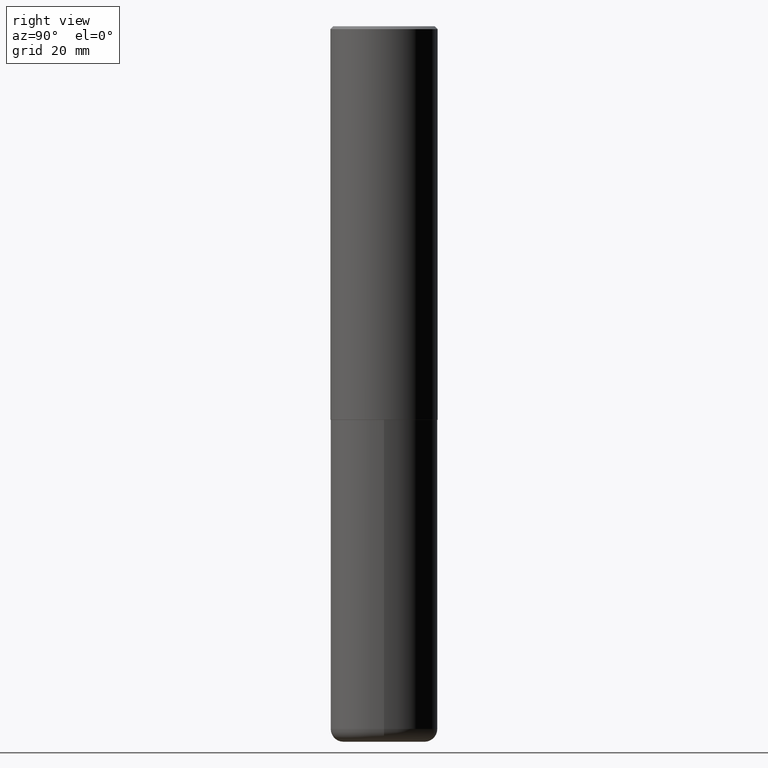
[diagram: clean part render]
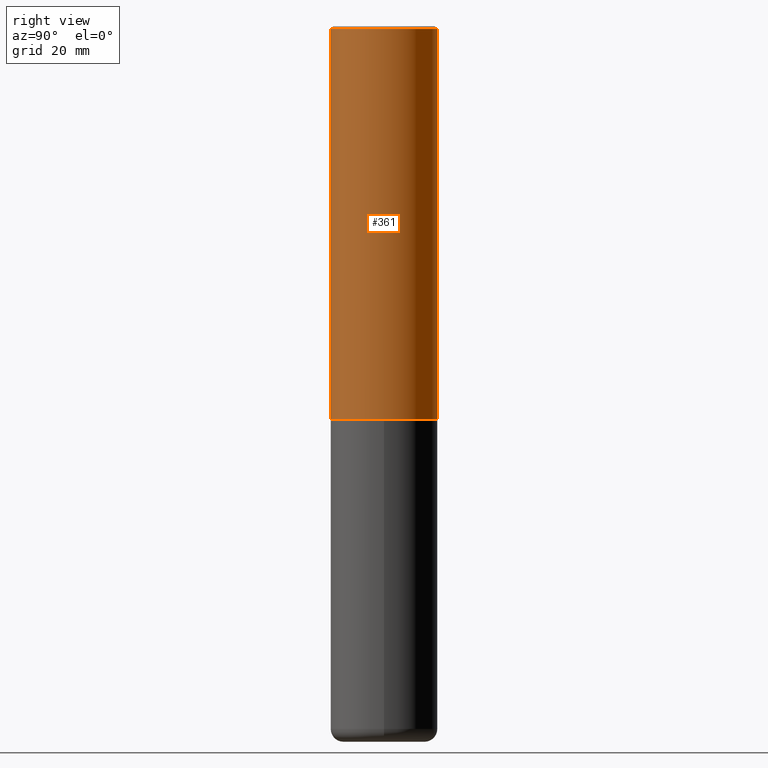
[diagram: same view with one face highlighted and labeled with its STEP entity id]
A machine part, right view. The second image highlights one B-rep face of the part: STEP entity #361.
In plain terms, the highlighted cylindrical surface (partial cylindrical patch) has radius 9.525 mm, axis along (-0, 0, 1).
Its self-contained STEP definition (entity closure, byte-faithful):
#10 = DIRECTION ( 'NONE',  ( -6.982962677686266711E-15, -1.000000000000000000, 3.490662795793665951E-15 ) ) ;
#13 = DIRECTION ( 'NONE',  ( -2.446040391741596606E-29, 3.490662795793665557E-15, 1.000000000000000000 ) ) ;
#17 = CARTESIAN_POINT ( 'NONE',  ( 2.618611004132350411E-15, 0.3749999999999999445, -0.02000000000000139513 ) ) ;
#33 = DIRECTION ( 'NONE',  ( -2.446040391741596606E-29, 3.490662795793665557E-15, 1.000000000000000000 ) ) ;
#34 = ORIENTED_EDGE ( 'NONE', *, *, #294, .F. ) ;
#62 = VECTOR ( 'NONE', #106, 39.37007874015748143 ) ;
#76 = DIRECTION ( 'NONE',  ( -2.446040391741596606E-29, 3.490662795793665557E-15, 1.000000000000000000 ) ) ;
#80 = VECTOR ( 'NONE', #150, 39.37007874015748143 ) ;
#94 = AXIS2_PLACEMENT_3D ( 'NONE', #342, #76, #10 ) ;
#101 = VERTEX_POINT ( 'NONE', #139 ) ;
#103 = ORIENTED_EDGE ( 'NONE', *, *, #153, .F. ) ;
#106 = DIRECTION ( 'NONE',  ( -2.446040391741596606E-29, 3.490662795793665557E-15, 1.000000000000000000 ) ) ;
#126 = CARTESIAN_POINT ( 'NONE',  ( -2.618611004132284935E-15, -0.3750000000000099920, -2.748999999999999222 ) ) ;
#131 = EDGE_CURVE ( 'NONE', #265, #190, #277, .T. ) ;
#134 = CARTESIAN_POINT ( 'NONE',  ( 2.664535259100411196E-15, 0.3749999999999907296, -2.749000000000000998 ) ) ;
#138 = CIRCLE ( 'NONE', #383, 0.3750000000000000555 ) ;
#139 = CARTESIAN_POINT ( 'NONE',  ( -2.572686749164323547E-15, -0.3750000000000001110, -0.01999999999999877570 ) ) ;
#142 = DIRECTION ( 'NONE',  ( -6.982962677686265922E-15, -1.000000000000000000, 3.494488891895536035E-15 ) ) ;
#150 = DIRECTION ( 'NONE',  ( -2.446040391741596606E-29, 3.490662795793665557E-15, 1.000000000000000000 ) ) ;
#153 = EDGE_CURVE ( 'NONE', #101, #190, #138, .T. ) ;
#170 = CYLINDRICAL_SURFACE ( 'NONE', #94, 0.3750000000000002220 ) ;
#190 = VERTEX_POINT ( 'NONE', #17 ) ;
#197 = CARTESIAN_POINT ( 'NONE',  ( -2.618611004132351594E-15, -0.3750000000000002220, 1.308998548422625521E-15 ) ) ;
#204 = CIRCLE ( 'NONE', #325, 0.3750000000000003886 ) ;
#208 = DIRECTION ( 'NONE',  ( -6.982962677686265922E-15, -1.000000000000000000, 2.913971193241877611E-15 ) ) ;
#214 = LINE ( 'NONE', #197, #80 ) ;
#215 = CARTESIAN_POINT ( 'NONE',  ( 4.892080783483214581E-31, -6.981325591587361238E-17, -0.02000000000000008715 ) ) ;
#263 = EDGE_LOOP ( 'NONE', ( #300, #336, #103, #34 ) ) ;
#265 = VERTEX_POINT ( 'NONE', #134 ) ;
#269 = FACE_OUTER_BOUND ( 'NONE', #263, .T. ) ;
#277 = LINE ( 'NONE', #341, #62 ) ;
#294 = EDGE_CURVE ( 'NONE', #330, #101, #214, .T. ) ;
#300 = ORIENTED_EDGE ( 'NONE', *, *, #378, .T. ) ;
#325 = AXIS2_PLACEMENT_3D ( 'NONE', #392, #33, #208 ) ;
#330 = VERTEX_POINT ( 'NONE', #126 ) ;
#336 = ORIENTED_EDGE ( 'NONE', *, *, #131, .T. ) ;
#341 = CARTESIAN_POINT ( 'NONE',  ( 2.664535259100376880E-15, 0.3750000000000002220, -1.308998548422625521E-15 ) ) ;
#342 = CARTESIAN_POINT ( 'NONE',  ( 0.000000000000000000, 0.000000000000000000, 0.000000000000000000 ) ) ;
#361 = ADVANCED_FACE ( 'NONE', ( #269 ), #170, .T. ) ;
#378 = EDGE_CURVE ( 'NONE', #330, #265, #204, .T. ) ;
#383 = AXIS2_PLACEMENT_3D ( 'NONE', #215, #13, #142 ) ;
#392 = CARTESIAN_POINT ( 'NONE',  ( 6.724165036897648492E-29, -9.595832025636787455E-15, -2.749000000000000110 ) ) ;